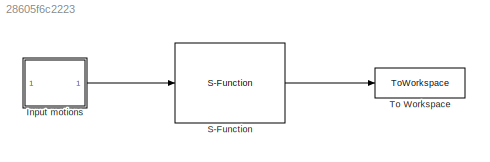
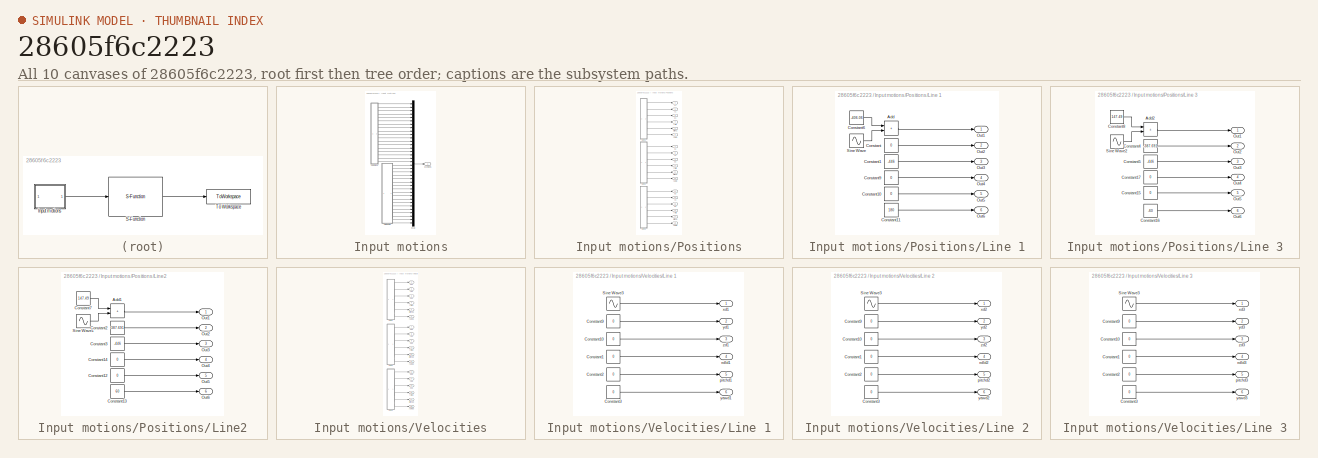
[diagram: thumbnail index - all 10 canvases of the model, root first then tree order]
MODEL slx_28605f6c2223
KIND model
CONFIG AbsTol = auto
CONFIG EnableMultiTasking = off
CONFIG FixedStep = dt
CONFIG MaxStep = auto
CONFIG MinStep = auto
CONFIG RelTol = 1e-3
CONFIG SampleTimeConstraint = Unconstrained
CONFIG SolverName = FixedStepDiscrete
CONFIG StartTime = 0.0
CONFIG StopTime = TMax
BLOCK [SubSystem] Input motions
BLOCK [Outport] Input motions/Motions
  VectorParamsAs1DForOutWhenUnconnected = off
BLOCK [Mux] Input motions/Mux
  DisplayOption = bar
  Inputs = 36
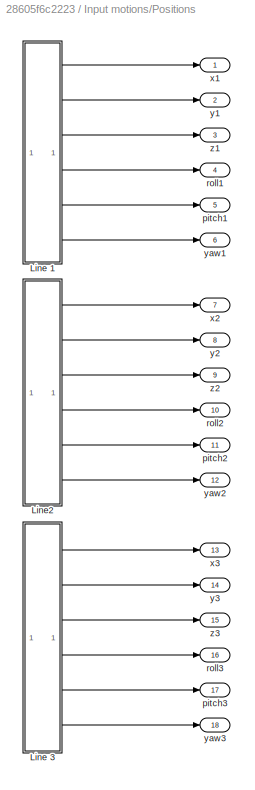
BLOCK [SubSystem] Input motions/Positions
BLOCK [SubSystem] Input motions/Positions/Line 1
BLOCK [Sum] Input motions/Positions/Line 1/Add
  IconShape = rectangular
BLOCK [Constant] Input motions/Positions/Line 1/Constant
  Value = 0
BLOCK [Constant] Input motions/Positions/Line 1/Constant1
  Value = -446
BLOCK [Constant] Input motions/Positions/Line 1/Constant10
  Value = 0
BLOCK [Constant] Input motions/Positions/Line 1/Constant11
  Value = 180
BLOCK [Constant] Input motions/Positions/Line 1/Constant6
  Value = -406.06
BLOCK [Constant] Input motions/Positions/Line 1/Constant9
  Value = 0
BLOCK [Outport] Input motions/Positions/Line 1/Out1
BLOCK [Outport] Input motions/Positions/Line 1/Out2
  Port = 2
BLOCK [Outport] Input motions/Positions/Line 1/Out3
  Port = 3
BLOCK [Outport] Input motions/Positions/Line 1/Out4
  Port = 4
BLOCK [Outport] Input motions/Positions/Line 1/Out5
  Port = 5
BLOCK [Outport] Input motions/Positions/Line 1/Out6
  Port = 6
BLOCK [Sin] Input motions/Positions/Line 1/Sine Wave
  Amplitude = 5
  Frequency = 0.314159265358979323846
  SampleTime = 0
BLOCK [SubSystem] Input motions/Positions/Line 3
BLOCK [Sum] Input motions/Positions/Line 3/Add2
  IconShape = rectangular
BLOCK [Constant] Input motions/Positions/Line 3/Constant15
  Value = 0
BLOCK [Constant] Input motions/Positions/Line 3/Constant16
  Value = -60
BLOCK [Constant] Input motions/Positions/Line 3/Constant17
  Value = 0
BLOCK [Constant] Input motions/Positions/Line 3/Constant4
  Value = -387.691
BLOCK [Constant] Input motions/Positions/Line 3/Constant5
  Value = -446
BLOCK [Constant] Input motions/Positions/Line 3/Constant8
  Value = 147.49
BLOCK [Outport] Input motions/Positions/Line 3/Out1
BLOCK [Outport] Input motions/Positions/Line 3/Out2
  Port = 2
BLOCK [Outport] Input motions/Positions/Line 3/Out3
  Port = 3
BLOCK [Outport] Input motions/Positions/Line 3/Out4
  Port = 4
BLOCK [Outport] Input motions/Positions/Line 3/Out5
  Port = 5
BLOCK [Outport] Input motions/Positions/Line 3/Out6
  Port = 6
BLOCK [Sin] Input motions/Positions/Line 3/Sine Wave2
  Amplitude = 5
  Frequency = 0.314159265358979323846
  SampleTime = 0
BLOCK [SubSystem] Input motions/Positions/Line2
BLOCK [Sum] Input motions/Positions/Line2/Add1
  IconShape = rectangular
BLOCK [Constant] Input motions/Positions/Line2/Constant12
  Value = 0
BLOCK [Constant] Input motions/Positions/Line2/Constant13
  Value = 60
BLOCK [Constant] Input motions/Positions/Line2/Constant14
  Value = 0
BLOCK [Constant] Input motions/Positions/Line2/Constant2
  Value = 387.691
BLOCK [Constant] Input motions/Positions/Line2/Constant3
  Value = -446
BLOCK [Constant] Input motions/Positions/Line2/Constant7
  Value = 147.49
BLOCK [Outport] Input motions/Positions/Line2/Out1
BLOCK [Outport] Input motions/Positions/Line2/Out2
  Port = 2
BLOCK [Outport] Input motions/Positions/Line2/Out3
  Port = 3
BLOCK [Outport] Input motions/Positions/Line2/Out4
  Port = 4
BLOCK [Outport] Input motions/Positions/Line2/Out5
  Port = 5
BLOCK [Outport] Input motions/Positions/Line2/Out6
  Port = 6
BLOCK [Sin] Input motions/Positions/Line2/Sine Wave1
  Amplitude = 5
  Frequency = 0.314159265358979323846
  SampleTime = 0
BLOCK [Outport] Input motions/Positions/pitch1
  Port = 5
BLOCK [Outport] Input motions/Positions/pitch2
  Port = 11
BLOCK [Outport] Input motions/Positions/pitch3
  Port = 17
BLOCK [Outport] Input motions/Positions/roll1
  Port = 4
BLOCK [Outport] Input motions/Positions/roll2
  Port = 10
BLOCK [Outport] Input motions/Positions/roll3
  Port = 16
BLOCK [Outport] Input motions/Positions/x1
BLOCK [Outport] Input motions/Positions/x2
  Port = 7
BLOCK [Outport] Input motions/Positions/x3
  Port = 13
BLOCK [Outport] Input motions/Positions/y1
  Port = 2
BLOCK [Outport] Input motions/Positions/y2
  Port = 8
BLOCK [Outport] Input motions/Positions/y3
  Port = 14
BLOCK [Outport] Input motions/Positions/yaw1
  Port = 6
BLOCK [Outport] Input motions/Positions/yaw2
  Port = 12
BLOCK [Outport] Input motions/Positions/yaw3
  Port = 18
BLOCK [Outport] Input motions/Positions/z1
  Port = 3
BLOCK [Outport] Input motions/Positions/z2
  Port = 9
BLOCK [Outport] Input motions/Positions/z3
  Port = 15
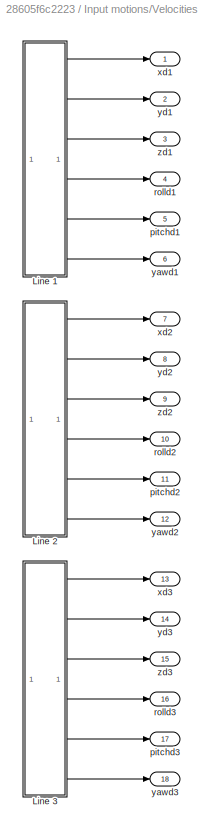
BLOCK [SubSystem] Input motions/Velocities
BLOCK [SubSystem] Input motions/Velocities/Line 1
BLOCK [Constant] Input motions/Velocities/Line 1/Constant1
  Value = 0
BLOCK [Constant] Input motions/Velocities/Line 1/Constant10
  Value = 0
BLOCK [Constant] Input motions/Velocities/Line 1/Constant2
  Value = 0
BLOCK [Constant] Input motions/Velocities/Line 1/Constant3
  Value = 0
BLOCK [Constant] Input motions/Velocities/Line 1/Constant9
  Value = 0
BLOCK [Sin] Input motions/Velocities/Line 1/Sine Wave3
  Amplitude = 0.314159265358979323846
  Frequency = 0.314159265358979323846
  Phase = 3.14159265358979323846 / 2
  SampleTime = 0
BLOCK [Outport] Input motions/Velocities/Line 1/pitchd1
  Port = 5
BLOCK [Outport] Input motions/Velocities/Line 1/rolld1
  Port = 4
BLOCK [Outport] Input motions/Velocities/Line 1/xd1
BLOCK [Outport] Input motions/Velocities/Line 1/yawd1
  Port = 6
BLOCK [Outport] Input motions/Velocities/Line 1/yd1
  Port = 2
BLOCK [Outport] Input motions/Velocities/Line 1/zd1
  Port = 3
BLOCK [SubSystem] Input motions/Velocities/Line 2
BLOCK [Constant] Input motions/Velocities/Line 2/Constant1
  Value = 0
BLOCK [Constant] Input motions/Velocities/Line 2/Constant10
  Value = 0
BLOCK [Constant] Input motions/Velocities/Line 2/Constant2
  Value = 0
BLOCK [Constant] Input motions/Velocities/Line 2/Constant3
  Value = 0
BLOCK [Constant] Input motions/Velocities/Line 2/Constant9
  Value = 0
BLOCK [Sin] Input motions/Velocities/Line 2/Sine Wave3
  Amplitude = 0.314159265358979323846
  Frequency = 0.314159265358979323846
  Phase = 3.14159265358979323846 / 2
  SampleTime = 0
BLOCK [Outport] Input motions/Velocities/Line 2/pitchd2
  Port = 5
BLOCK [Outport] Input motions/Velocities/Line 2/rolld2
  Port = 4
BLOCK [Outport] Input motions/Velocities/Line 2/xd2
BLOCK [Outport] Input motions/Velocities/Line 2/yawd2
  Port = 6
BLOCK [Outport] Input motions/Velocities/Line 2/yd2
  Port = 2
BLOCK [Outport] Input motions/Velocities/Line 2/zd2
  Port = 3
BLOCK [SubSystem] Input motions/Velocities/Line 3
BLOCK [Constant] Input motions/Velocities/Line 3/Constant1
  Value = 0
BLOCK [Constant] Input motions/Velocities/Line 3/Constant10
  Value = 0
BLOCK [Constant] Input motions/Velocities/Line 3/Constant2
  Value = 0
BLOCK [Constant] Input motions/Velocities/Line 3/Constant3
  Value = 0
BLOCK [Constant] Input motions/Velocities/Line 3/Constant9
  Value = 0
BLOCK [Sin] Input motions/Velocities/Line 3/Sine Wave3
  Amplitude = 0.314159265358979323846
  Frequency = 0.314159265358979323846
  Phase = 3.14159265358979323846 / 2
  SampleTime = 0
BLOCK [Outport] Input motions/Velocities/Line 3/pitchd3
  Port = 5
BLOCK [Outport] Input motions/Velocities/Line 3/rolld3
  Port = 4
BLOCK [Outport] Input motions/Velocities/Line 3/xd3
BLOCK [Outport] Input motions/Velocities/Line 3/yawd3
  Port = 6
BLOCK [Outport] Input motions/Velocities/Line 3/yd3
  Port = 2
BLOCK [Outport] Input motions/Velocities/Line 3/zd3
  Port = 3
BLOCK [Outport] Input motions/Velocities/pitchd1
  Port = 5
BLOCK [Outport] Input motions/Velocities/pitchd2
  Port = 11
BLOCK [Outport] Input motions/Velocities/pitchd3
  Port = 17
BLOCK [Outport] Input motions/Velocities/rolld1
  Port = 4
BLOCK [Outport] Input motions/Velocities/rolld2
  Port = 10
BLOCK [Outport] Input motions/Velocities/rolld3
  Port = 16
BLOCK [Outport] Input motions/Velocities/xd1
BLOCK [Outport] Input motions/Velocities/xd2
  Port = 7
BLOCK [Outport] Input motions/Velocities/xd3
  Port = 13
BLOCK [Outport] Input motions/Velocities/yawd1
  Port = 6
BLOCK [Outport] Input motions/Velocities/yawd2
  Port = 12
BLOCK [Outport] Input motions/Velocities/yawd3
  Port = 18
BLOCK [Outport] Input motions/Velocities/yd1
  Port = 2
BLOCK [Outport] Input motions/Velocities/yd2
  Port = 8
BLOCK [Outport] Input motions/Velocities/yd3
  Port = 14
BLOCK [Outport] Input motions/Velocities/zd1
  Port = 3
BLOCK [Outport] Input motions/Velocities/zd2
  Port = 9
BLOCK [Outport] Input motions/Velocities/zd3
  Port = 15
BLOCK [S-Function] S-Function
  EnableBusSupport = off
  FunctionName = MD_SFunc_6DOF
  Parameters = MD_InputFileName, dt, TMax
  SFcnIsStateOwnerBlock = off
  SFunctionDeploymentMode = off
BLOCK [ToWorkspace] To Workspace
  FixptAsFi = on
  MaxDataPoints = inf
  SampleTime = -1
  SaveFormat = Timeseries
  VariableName = simout
LINE Input motions/Mux:1 -> Input motions/Motions:1
LINE Input motions/Positions/Line 1/Add:1 -> Input motions/Positions/Line 1/Out1:1
LINE Input motions/Positions/Line 1/Constant10:1 -> Input motions/Positions/Line 1/Out5:1
LINE Input motions/Positions/Line 1/Constant11:1 -> Input motions/Positions/Line 1/Out6:1
LINE Input motions/Positions/Line 1/Constant1:1 -> Input motions/Positions/Line 1/Out3:1
LINE Input motions/Positions/Line 1/Constant6:1 -> Input motions/Positions/Line 1/Add:1
LINE Input motions/Positions/Line 1/Constant9:1 -> Input motions/Positions/Line 1/Out4:1
LINE Input motions/Positions/Line 1/Constant:1 -> Input motions/Positions/Line 1/Out2:1
LINE Input motions/Positions/Line 1/Sine Wave:1 -> Input motions/Positions/Line 1/Add:2
LINE Input motions/Positions/Line 1:1 -> Input motions/Positions/x1:1
LINE Input motions/Positions/Line 1:2 -> Input motions/Positions/y1:1
LINE Input motions/Positions/Line 1:3 -> Input motions/Positions/z1:1
LINE Input motions/Positions/Line 1:4 -> Input motions/Positions/roll1:1
LINE Input motions/Positions/Line 1:5 -> Input motions/Positions/pitch1:1
LINE Input motions/Positions/Line 1:6 -> Input motions/Positions/yaw1:1
LINE Input motions/Positions/Line 3/Add2:1 -> Input motions/Positions/Line 3/Out1:1
LINE Input motions/Positions/Line 3/Constant15:1 -> Input motions/Positions/Line 3/Out5:1
LINE Input motions/Positions/Line 3/Constant16:1 -> Input motions/Positions/Line 3/Out6:1
LINE Input motions/Positions/Line 3/Constant17:1 -> Input motions/Positions/Line 3/Out4:1
LINE Input motions/Positions/Line 3/Constant4:1 -> Input motions/Positions/Line 3/Out2:1
LINE Input motions/Positions/Line 3/Constant5:1 -> Input motions/Positions/Line 3/Out3:1
LINE Input motions/Positions/Line 3/Constant8:1 -> Input motions/Positions/Line 3/Add2:1
LINE Input motions/Positions/Line 3/Sine Wave2:1 -> Input motions/Positions/Line 3/Add2:2
LINE Input motions/Positions/Line 3:1 -> Input motions/Positions/x3:1
LINE Input motions/Positions/Line 3:2 -> Input motions/Positions/y3:1
LINE Input motions/Positions/Line 3:3 -> Input motions/Positions/z3:1
LINE Input motions/Positions/Line 3:4 -> Input motions/Positions/roll3:1
LINE Input motions/Positions/Line 3:5 -> Input motions/Positions/pitch3:1
LINE Input motions/Positions/Line 3:6 -> Input motions/Positions/yaw3:1
LINE Input motions/Positions/Line2/Add1:1 -> Input motions/Positions/Line2/Out1:1
LINE Input motions/Positions/Line2/Constant12:1 -> Input motions/Positions/Line2/Out5:1
LINE Input motions/Positions/Line2/Constant13:1 -> Input motions/Positions/Line2/Out6:1
LINE Input motions/Positions/Line2/Constant14:1 -> Input motions/Positions/Line2/Out4:1
LINE Input motions/Positions/Line2/Constant2:1 -> Input motions/Positions/Line2/Out2:1
LINE Input motions/Positions/Line2/Constant3:1 -> Input motions/Positions/Line2/Out3:1
LINE Input motions/Positions/Line2/Constant7:1 -> Input motions/Positions/Line2/Add1:1
LINE Input motions/Positions/Line2/Sine Wave1:1 -> Input motions/Positions/Line2/Add1:2
LINE Input motions/Positions/Line2:1 -> Input motions/Positions/x2:1
LINE Input motions/Positions/Line2:2 -> Input motions/Positions/y2:1
LINE Input motions/Positions/Line2:3 -> Input motions/Positions/z2:1
LINE Input motions/Positions/Line2:4 -> Input motions/Positions/roll2:1
LINE Input motions/Positions/Line2:5 -> Input motions/Positions/pitch2:1
LINE Input motions/Positions/Line2:6 -> Input motions/Positions/yaw2:1
LINE Input motions/Positions:1 -> Input motions/Mux:1
LINE Input motions/Positions:10 -> Input motions/Mux:10
LINE Input motions/Positions:11 -> Input motions/Mux:11
LINE Input motions/Positions:12 -> Input motions/Mux:12
LINE Input motions/Positions:13 -> Input motions/Mux:13
LINE Input motions/Positions:14 -> Input motions/Mux:14
LINE Input motions/Positions:15 -> Input motions/Mux:15
LINE Input motions/Positions:16 -> Input motions/Mux:16
LINE Input motions/Positions:17 -> Input motions/Mux:17
LINE Input motions/Positions:18 -> Input motions/Mux:18
LINE Input motions/Positions:2 -> Input motions/Mux:2
LINE Input motions/Positions:3 -> Input motions/Mux:3
LINE Input motions/Positions:4 -> Input motions/Mux:4
LINE Input motions/Positions:5 -> Input motions/Mux:5
LINE Input motions/Positions:6 -> Input motions/Mux:6
LINE Input motions/Positions:7 -> Input motions/Mux:7
LINE Input motions/Positions:8 -> Input motions/Mux:8
LINE Input motions/Positions:9 -> Input motions/Mux:9
LINE Input motions/Velocities/Line 1/Constant10:1 -> Input motions/Velocities/Line 1/zd1:1
LINE Input motions/Velocities/Line 1/Constant1:1 -> Input motions/Velocities/Line 1/rolld1:1
LINE Input motions/Velocities/Line 1/Constant2:1 -> Input motions/Velocities/Line 1/pitchd1:1
LINE Input motions/Velocities/Line 1/Constant3:1 -> Input motions/Velocities/Line 1/yawd1:1
LINE Input motions/Velocities/Line 1/Constant9:1 -> Input motions/Velocities/Line 1/yd1:1
LINE Input motions/Velocities/Line 1/Sine Wave3:1 -> Input motions/Velocities/Line 1/xd1:1
LINE Input motions/Velocities/Line 1:1 -> Input motions/Velocities/xd1:1
LINE Input motions/Velocities/Line 1:2 -> Input motions/Velocities/yd1:1
LINE Input motions/Velocities/Line 1:3 -> Input motions/Velocities/zd1:1
LINE Input motions/Velocities/Line 1:4 -> Input motions/Velocities/rolld1:1
LINE Input motions/Velocities/Line 1:5 -> Input motions/Velocities/pitchd1:1
LINE Input motions/Velocities/Line 1:6 -> Input motions/Velocities/yawd1:1
LINE Input motions/Velocities/Line 2/Constant10:1 -> Input motions/Velocities/Line 2/zd2:1
LINE Input motions/Velocities/Line 2/Constant1:1 -> Input motions/Velocities/Line 2/rolld2:1
LINE Input motions/Velocities/Line 2/Constant2:1 -> Input motions/Velocities/Line 2/pitchd2:1
LINE Input motions/Velocities/Line 2/Constant3:1 -> Input motions/Velocities/Line 2/yawd2:1
LINE Input motions/Velocities/Line 2/Constant9:1 -> Input motions/Velocities/Line 2/yd2:1
LINE Input motions/Velocities/Line 2/Sine Wave3:1 -> Input motions/Velocities/Line 2/xd2:1
LINE Input motions/Velocities/Line 2:1 -> Input motions/Velocities/xd2:1
LINE Input motions/Velocities/Line 2:2 -> Input motions/Velocities/yd2:1
LINE Input motions/Velocities/Line 2:3 -> Input motions/Velocities/zd2:1
LINE Input motions/Velocities/Line 2:4 -> Input motions/Velocities/rolld2:1
LINE Input motions/Velocities/Line 2:5 -> Input motions/Velocities/pitchd2:1
LINE Input motions/Velocities/Line 2:6 -> Input motions/Velocities/yawd2:1
LINE Input motions/Velocities/Line 3/Constant10:1 -> Input motions/Velocities/Line 3/zd3:1
LINE Input motions/Velocities/Line 3/Constant1:1 -> Input motions/Velocities/Line 3/rolld3:1
LINE Input motions/Velocities/Line 3/Constant2:1 -> Input motions/Velocities/Line 3/pitchd3:1
LINE Input motions/Velocities/Line 3/Constant3:1 -> Input motions/Velocities/Line 3/yawd3:1
LINE Input motions/Velocities/Line 3/Constant9:1 -> Input motions/Velocities/Line 3/yd3:1
LINE Input motions/Velocities/Line 3/Sine Wave3:1 -> Input motions/Velocities/Line 3/xd3:1
LINE Input motions/Velocities/Line 3:1 -> Input motions/Velocities/xd3:1
LINE Input motions/Velocities/Line 3:2 -> Input motions/Velocities/yd3:1
LINE Input motions/Velocities/Line 3:3 -> Input motions/Velocities/zd3:1
LINE Input motions/Velocities/Line 3:4 -> Input motions/Velocities/rolld3:1
LINE Input motions/Velocities/Line 3:5 -> Input motions/Velocities/pitchd3:1
LINE Input motions/Velocities/Line 3:6 -> Input motions/Velocities/yawd3:1
LINE Input motions/Velocities:1 -> Input motions/Mux:19
LINE Input motions/Velocities:10 -> Input motions/Mux:28
LINE Input motions/Velocities:11 -> Input motions/Mux:29
LINE Input motions/Velocities:12 -> Input motions/Mux:30
LINE Input motions/Velocities:13 -> Input motions/Mux:31
LINE Input motions/Velocities:14 -> Input motions/Mux:32
LINE Input motions/Velocities:15 -> Input motions/Mux:33
LINE Input motions/Velocities:16 -> Input motions/Mux:34
LINE Input motions/Velocities:17 -> Input motions/Mux:35
LINE Input motions/Velocities:18 -> Input motions/Mux:36
LINE Input motions/Velocities:2 -> Input motions/Mux:20
LINE Input motions/Velocities:3 -> Input motions/Mux:21
LINE Input motions/Velocities:4 -> Input motions/Mux:22
LINE Input motions/Velocities:5 -> Input motions/Mux:23
LINE Input motions/Velocities:6 -> Input motions/Mux:24
LINE Input motions/Velocities:7 -> Input motions/Mux:25
LINE Input motions/Velocities:8 -> Input motions/Mux:26
LINE Input motions/Velocities:9 -> Input motions/Mux:27
LINE Input motions:1 -> S-Function:1
LINE S-Function:1 -> To Workspace:1
